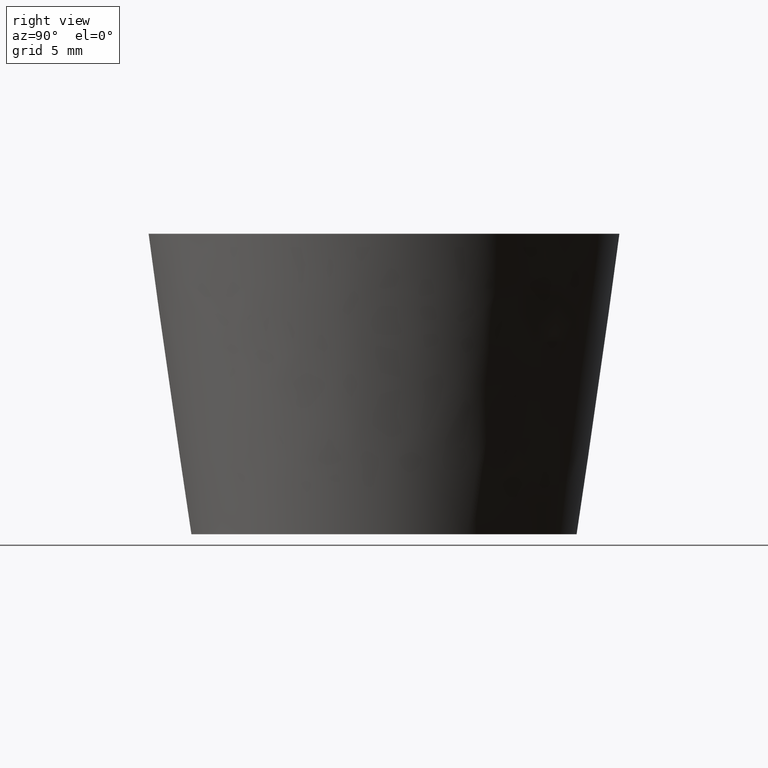
[diagram: clean part render]
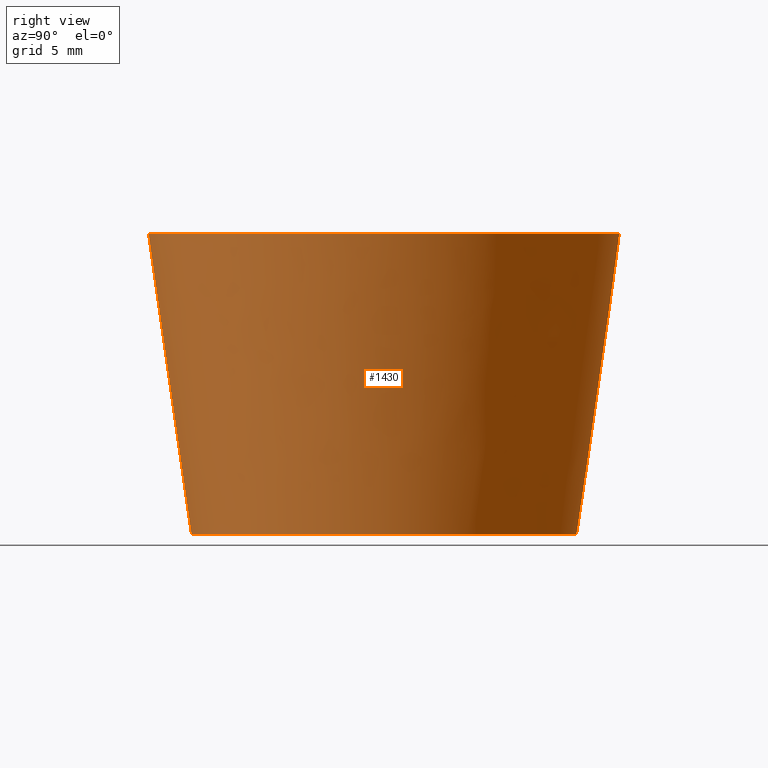
[diagram: same view with one face highlighted and labeled with its STEP entity id]
A machine part, right view. The second image highlights one B-rep face of the part: STEP entity #1430.
In plain terms, the highlighted face is a freeform B-spline surface patch.
Its self-contained STEP definition (entity closure, byte-faithful):
#1269=CARTESIAN_POINT('',(-0.706130450822384,8.972256042262355,-0.000000504974533));
#1270=VERTEX_POINT('',#1269);
#1284=CARTESIAN_POINT('',(0.706130450822384,-8.972256042262355,-0.000000504974533));
#1285=VERTEX_POINT('',#1284);
#1301=CARTESIAN_POINT('',(0.863043719665199,-10.966090825320739,13.999997598133641));
#1302=VERTEX_POINT('',#1301);
#1303=CARTESIAN_POINT('',(0.706130450822384,-8.972256042262355,-0.000000504974533));
#1304=CARTESIAN_POINT('',(0.863043719665199,-10.966090825320739,13.999997598133641));
#1305=QUASI_UNIFORM_CURVE('',1,(#1303,#1304),.UNSPECIFIED.,.F.,.U.);
#1306=EDGE_CURVE('',#1285,#1302,#1305,.T.);
#1325=CARTESIAN_POINT('',(-0.863043719665198,10.966090825320739,13.999997598133641));
#1326=VERTEX_POINT('',#1325);
#1340=CARTESIAN_POINT('',(-0.706130450822384,8.972256042262355,-0.000000504974533));
#1341=CARTESIAN_POINT('',(-0.863043719665198,10.966090825320739,13.999997598133641));
#1342=QUASI_UNIFORM_CURVE('',1,(#1340,#1341),.UNSPECIFIED.,.F.,.U.);
#1343=EDGE_CURVE('',#1270,#1326,#1342,.T.);
#1348=CARTESIAN_POINT('',(0.702208906764217,-8.922410136911482,-0.350000000000000));
#1349=CARTESIAN_POINT('',(9.624619043675699,-8.220201230147266,-0.350000000000000));
#1350=CARTESIAN_POINT('',(8.922410136911482,0.702208906764217,-0.350000000000000));
#1351=CARTESIAN_POINT('',(8.220201230147266,9.624619043675699,-0.350000000000000));
#1352=CARTESIAN_POINT('',(-0.702208906764217,8.922410136911482,-0.350000000000000));
#1353=CARTESIAN_POINT('',(0.867071081662353,-11.017182684418231,14.358750000000001));
#1354=CARTESIAN_POINT('',(11.884253766080581,-10.150111602755874,14.358749999999999));
#1355=CARTESIAN_POINT('',(11.017182684418231,0.867071081662353,14.358750000000001));
#1356=CARTESIAN_POINT('',(10.150111602755874,11.884253766080581,14.358749999999999));
#1357=CARTESIAN_POINT('',(-0.867071081662353,11.017182684418231,14.358750000000001));
#1365=(BOUNDED_SURFACE()B_SPLINE_SURFACE(2,1,((#1348,#1353),(#1349,#1354),(#1350,#1355),(#1351,#1356),(#1352,#1357)),.UNSPECIFIED.,.F.,.F.,.U.)B_SPLINE_SURFACE_WITH_KNOTS((3,2,3),(2,2),(0.0,18.310310524702661,36.620621049405322),(0.0,14.858081239682340),.UNSPECIFIED.)GEOMETRIC_REPRESENTATION_ITEM()RATIONAL_B_SPLINE_SURFACE(((1.0,1.0),(0.707106781186548,0.707106781186548),(1.0,1.0),(0.707106781186548,0.707106781186548),(1.0,1.0)))REPRESENTATION_ITEM('')SURFACE());
#1366=CARTESIAN_POINT('',(9.0,0.0,0.0));
#1367=VERTEX_POINT('',#1366);
#1368=CARTESIAN_POINT('',(-0.706130450822384,8.972256042262355,-0.000000504974533));
#1369=CARTESIAN_POINT('',(-0.353610257274673,9.0,0.0));
#1370=CARTESIAN_POINT('',(0.0,9.0,0.0));
#1371=CARTESIAN_POINT('',(9.0,9.0,0.0));
#1372=CARTESIAN_POINT('',(9.0,0.0,0.0));
#1380=(BOUNDED_CURVE()B_SPLINE_CURVE(2,(#1368,#1369,#1370,#1371,#1372),.UNSPECIFIED.,.F.,.U.)B_SPLINE_CURVE_WITH_KNOTS((3,2,3),(0.236331327478090,0.250000000000000,0.500000000000000),.UNSPECIFIED.)CURVE()GEOMETRIC_REPRESENTATION_ITEM()RATIONAL_B_SPLINE_CURVE((0.969723412195964,0.983986154032603,1.0,0.707106781186547,1.0))REPRESENTATION_ITEM(''));
#1381=EDGE_CURVE('',#1270,#1367,#1380,.T.);
#1382=ORIENTED_EDGE('',*,*,#1381,.F.);
#1383=ORIENTED_EDGE('',*,*,#1343,.T.);
#1384=CARTESIAN_POINT('',(11.0,0.0,14.0));
#1385=VERTEX_POINT('',#1384);
#1386=CARTESIAN_POINT('',(-0.863043719665198,10.966090825320736,13.999997598133641));
#1387=CARTESIAN_POINT('',(-0.432187982809186,10.999999664143953,13.999997641750518));
#1388=CARTESIAN_POINT('',(0.000000025903387,10.999999670863840,13.999997688934970));
#1389=CARTESIAN_POINT('',(11.000000012442825,10.999999841897772,13.999998889868145));
#1390=CARTESIAN_POINT('',(11.0,0.0,14.0));
#1398=(BOUNDED_CURVE()B_SPLINE_CURVE(2,(#1386,#1387,#1388,#1389,#1390),.UNSPECIFIED.,.F.,.U.)B_SPLINE_CURVE_WITH_KNOTS((3,2,3),(0.236331399216205,0.250000000000000,0.500000000000000),.UNSPECIFIED.)CURVE()GEOMETRIC_REPRESENTATION_ITEM()RATIONAL_B_SPLINE_CURVE((0.969723561908021,0.983986238079033,1.0,0.707106781186548,1.0))REPRESENTATION_ITEM(''));
#1399=EDGE_CURVE('',#1326,#1385,#1398,.T.);
#1400=ORIENTED_EDGE('',*,*,#1399,.T.);
#1401=CARTESIAN_POINT('',(11.0,0.0,14.0));
#1402=CARTESIAN_POINT('',(10.999999986539441,-10.168301102910700,13.999998799066827));
#1403=CARTESIAN_POINT('',(0.863043719665199,-10.966090825320734,13.999997598133639));
#1411=(BOUNDED_CURVE()B_SPLINE_CURVE(2,(#1401,#1402,#1403),.UNSPECIFIED.,.F.,.U.)B_SPLINE_CURVE_WITH_KNOTS((3,3),(0.500000000000000,0.736331399216205),.UNSPECIFIED.)CURVE()GEOMETRIC_REPRESENTATION_ITEM()RATIONAL_B_SPLINE_CURVE((1.0,0.723120543107515,0.969723561908021))REPRESENTATION_ITEM(''));
#1412=EDGE_CURVE('',#1385,#1302,#1411,.T.);
#1413=ORIENTED_EDGE('',*,*,#1412,.T.);
#1414=ORIENTED_EDGE('',*,*,#1306,.F.);
#1415=CARTESIAN_POINT('',(9.0,0.0,0.0));
#1416=CARTESIAN_POINT('',(9.0,-8.319515731800587,0.0));
#1417=CARTESIAN_POINT('',(0.706130450822384,-8.972256042262355,-0.000000504974533));
#1425=(BOUNDED_CURVE()B_SPLINE_CURVE(2,(#1415,#1416,#1417),.UNSPECIFIED.,.F.,.U.)B_SPLINE_CURVE_WITH_KNOTS((3,3),(0.500000000000000,0.736331327478090),.UNSPECIFIED.)CURVE()GEOMETRIC_REPRESENTATION_ITEM()RATIONAL_B_SPLINE_CURVE((1.0,0.723120627153944,0.969723412195964))REPRESENTATION_ITEM(''));
#1426=EDGE_CURVE('',#1367,#1285,#1425,.T.);
#1427=ORIENTED_EDGE('',*,*,#1426,.F.);
#1428=EDGE_LOOP('',(#1382,#1383,#1400,#1413,#1414,#1427));
#1429=FACE_OUTER_BOUND('',#1428,.T.);
#1430=ADVANCED_FACE('',(#1429),#1365,.T.);